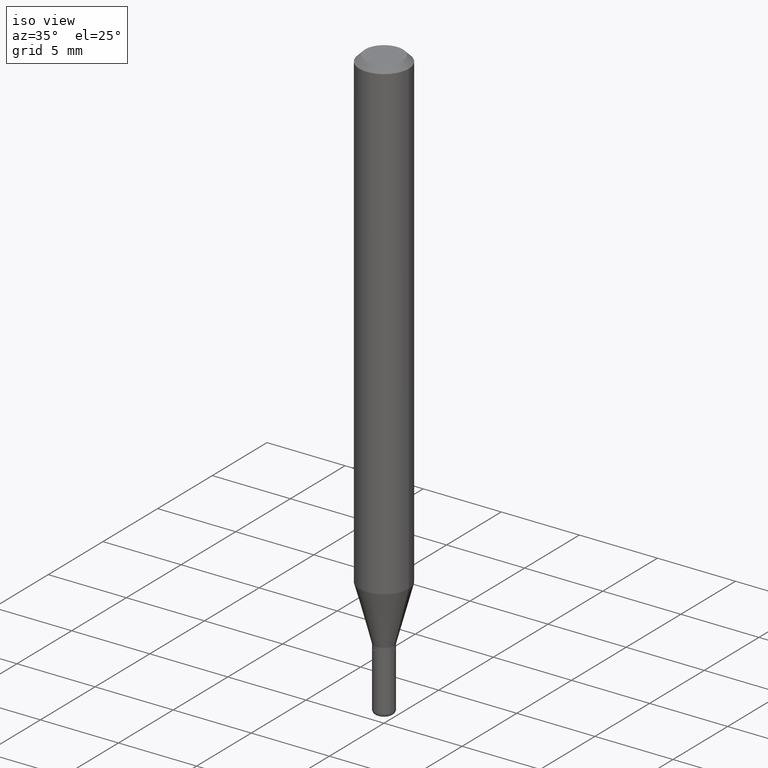
[diagram: clean part render]
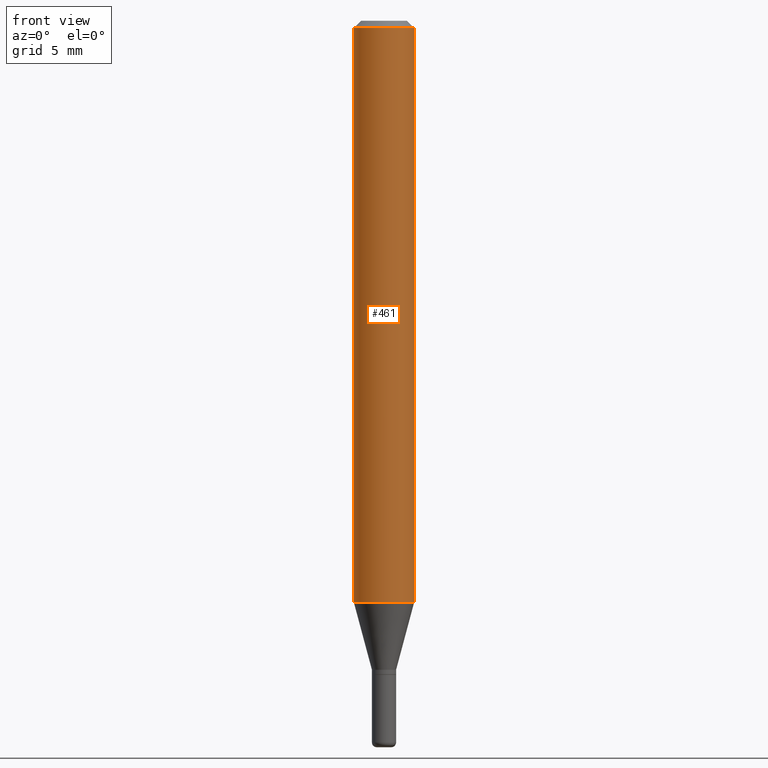
[diagram: tour spotlight — one face highlighted and labeled with its STEP entity id]
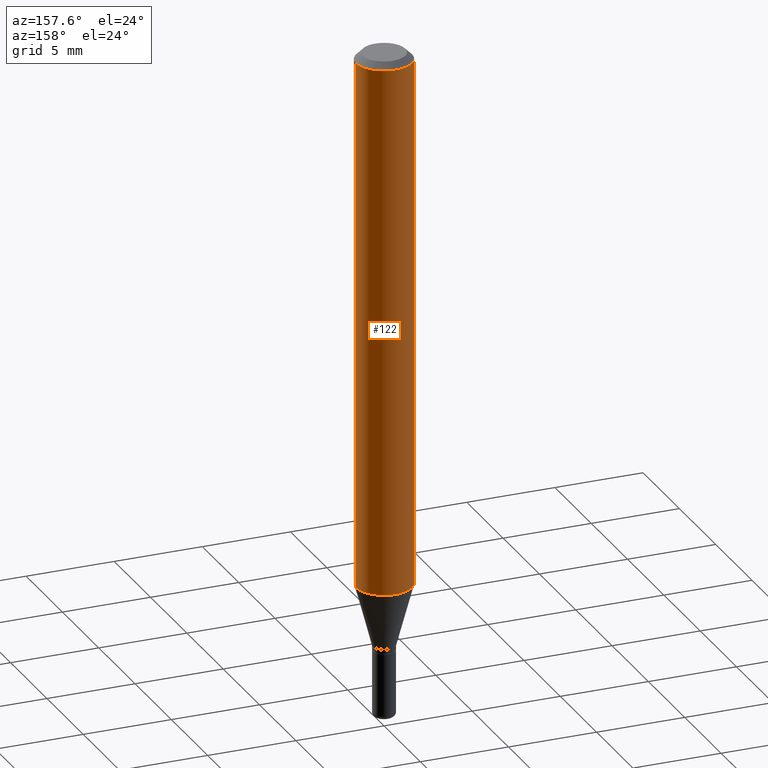
[diagram: tour spotlight — one face highlighted and labeled with its STEP entity id]
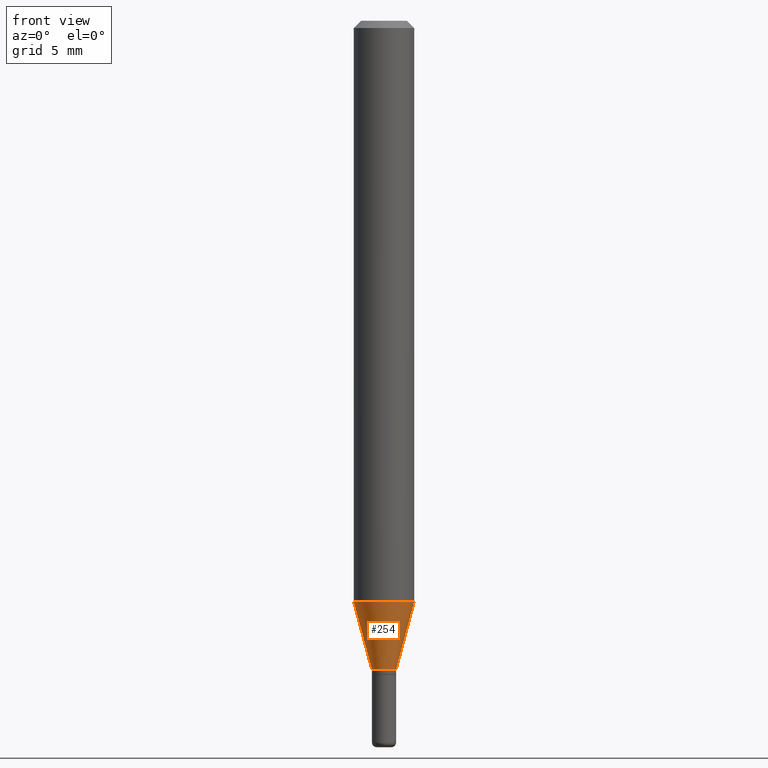
[diagram: tour spotlight — one face highlighted and labeled with its STEP entity id]
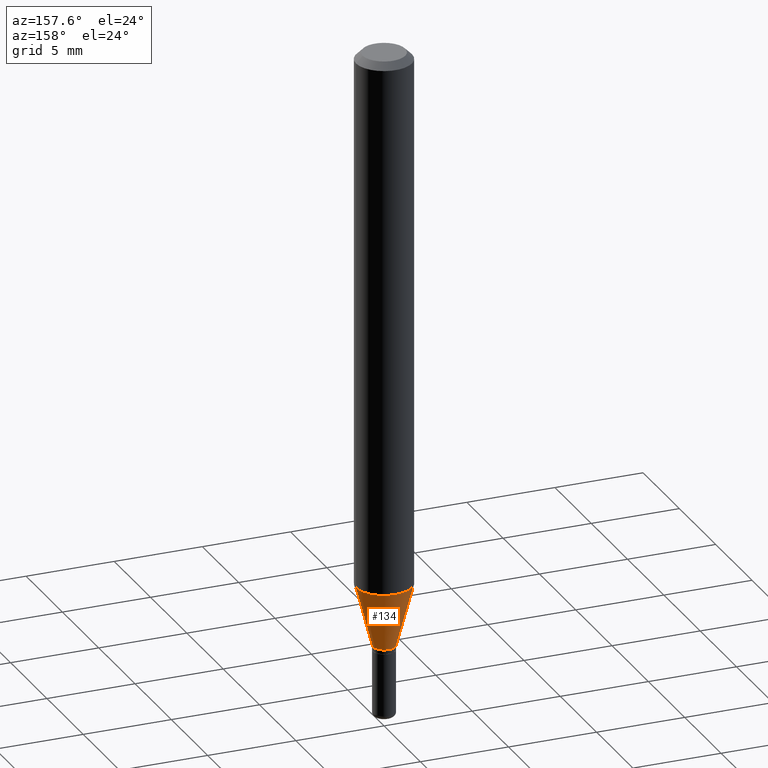
[diagram: tour spotlight — one face highlighted and labeled with its STEP entity id]
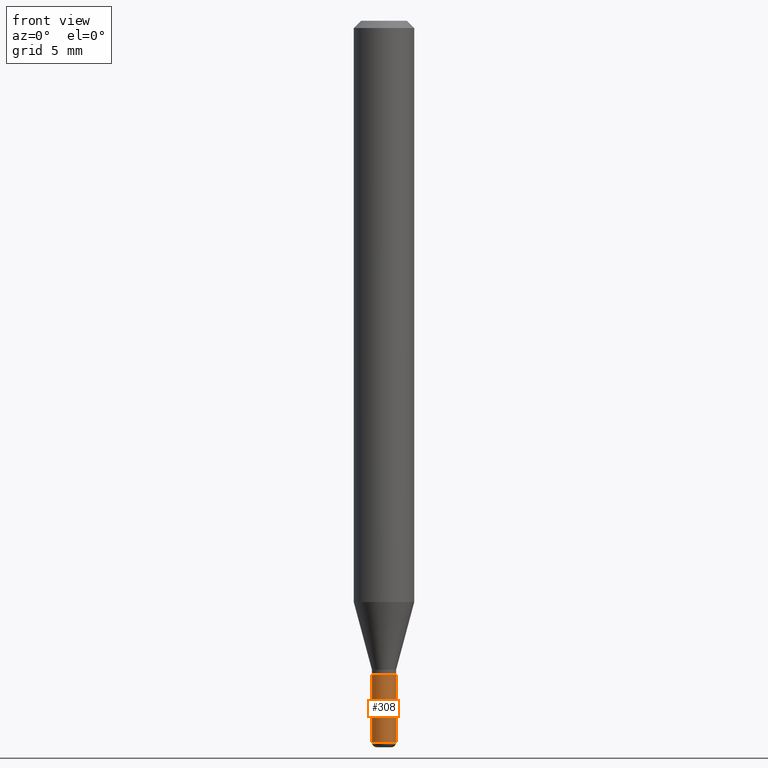
[diagram: tour spotlight — one face highlighted and labeled with its STEP entity id]
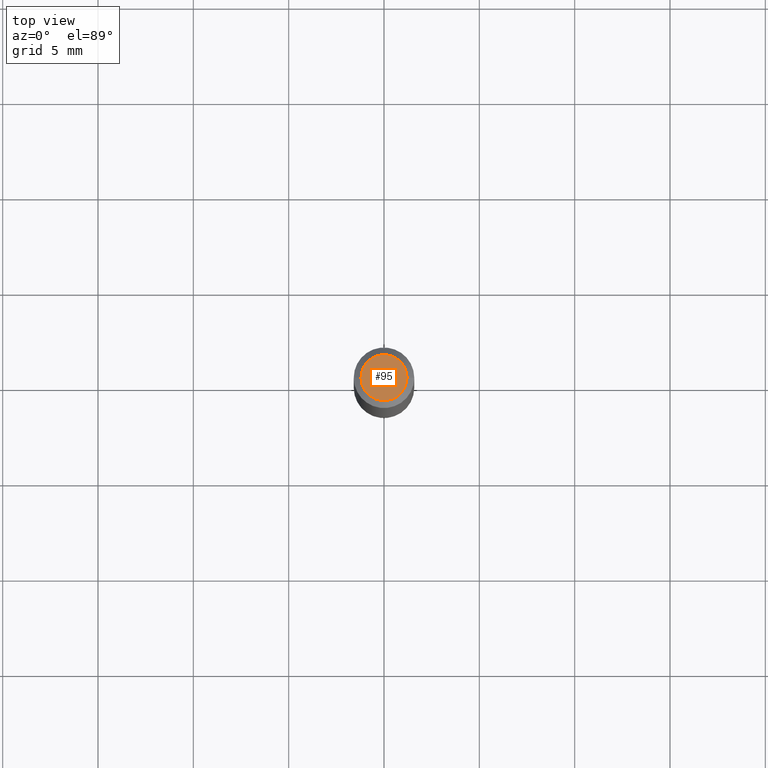
[diagram: tour spotlight — one face highlighted and labeled with its STEP entity id]
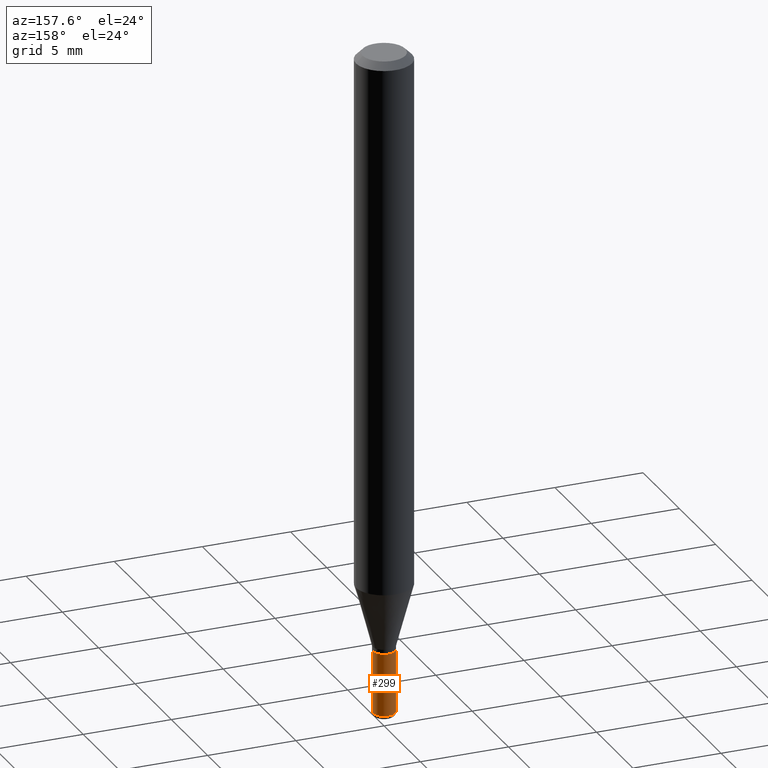
[diagram: tour spotlight — one face highlighted and labeled with its STEP entity id]
A machine part: a face-by-face anatomy tour. The part has 18 B-rep faces; the first image is the clean iso view, then the 7 largest visible faces are spotlighted one at a time (largest first), each with its STEP entity span.

Face 1 — front view, entity #461. In plain terms, the highlighted cylindrical surface (edge-blend (fillet) strip) has radius 1.5875 mm, axis along (-0, 0, 1).
Definition (entity closure, byte-faithful):
#9 = VERTEX_POINT ( 'NONE', #403 ) ;
#21 = AXIS2_PLACEMENT_3D ( 'NONE', #420, #71, #230 ) ;
#28 = CARTESIAN_POINT ( 'NONE',  ( -0.06250000000000000000, 4.440892098500626162E-16, -3.074334431409316114E-30 ) ) ;
#37 = VERTEX_POINT ( 'NONE', #332 ) ;
#71 = DIRECTION ( 'NONE',  ( -2.445468806185136597E-29, 3.491481338843145583E-15, 1.000000000000000000 ) ) ;
#75 = EDGE_CURVE ( 'NONE', #100, #434, #104, .T. ) ;
#100 = VERTEX_POINT ( 'NONE', #231 ) ;
#104 = LINE ( 'NONE', #326, #144 ) ;
#111 = FACE_OUTER_BOUND ( 'NONE', #476, .T. ) ;
#116 = EDGE_CURVE ( 'NONE', #9, #100, #400, .T. ) ;
#144 = VECTOR ( 'NONE', #259, 39.37007874015748143 ) ;
#151 = DIRECTION ( 'NONE',  ( -2.445468806185136877E-29, 3.491481338843145188E-15, 1.000000000000000000 ) ) ;
#179 = ORIENTED_EDGE ( 'NONE', *, *, #212, .F. ) ;
#182 = AXIS2_PLACEMENT_3D ( 'NONE', #341, #378, #224 ) ;
#203 = EDGE_CURVE ( 'NONE', #9, #37, #458, .T. ) ;
#212 = EDGE_CURVE ( 'NONE', #37, #434, #498, .T. ) ;
#224 = DIRECTION ( 'NONE',  ( 1.000000000000000000, -6.982962677686262766E-15, 0.000000000000000000 ) ) ;
#230 = DIRECTION ( 'NONE',  ( 1.000000000000000000, -6.982962677686266711E-15, 0.000000000000000000 ) ) ;
#231 = CARTESIAN_POINT ( 'NONE',  ( 0.06250000000000000000, -4.626380695771160368E-15, -1.200048094716167135 ) ) ;
#241 = ORIENTED_EDGE ( 'NONE', *, *, #203, .F. ) ;
#259 = DIRECTION ( 'NONE',  ( -2.445468806185136877E-29, 3.491481338843145188E-15, 1.000000000000000000 ) ) ;
#262 = DIRECTION ( 'NONE',  ( -2.445468806185136597E-29, 3.491481338843145583E-15, 1.000000000000000000 ) ) ;
#279 = AXIS2_PLACEMENT_3D ( 'NONE', #468, #262, #300 ) ;
#300 = DIRECTION ( 'NONE',  ( 1.000000000000000000, -6.982962677686266711E-15, 4.876176775795935793E-29 ) ) ;
#318 = ORIENTED_EDGE ( 'NONE', *, *, #75, .T. ) ;
#322 = ORIENTED_EDGE ( 'NONE', *, *, #116, .T. ) ;
#326 = CARTESIAN_POINT ( 'NONE',  ( 0.06250000000000000000, -4.364351673553916694E-16, 3.047610484872459871E-30 ) ) ;
#332 = CARTESIAN_POINT ( 'NONE',  ( -0.06250000000000000000, -1.677069664399144681E-15, -0.01499999999999970281 ) ) ;
#338 = CYLINDRICAL_SURFACE ( 'NONE', #279, 0.06250000000000000000 ) ;
#341 = CARTESIAN_POINT ( 'NONE',  ( 2.934680181550293043E-29, -4.189945528415768698E-15, -1.200048094716167135 ) ) ;
#357 = VECTOR ( 'NONE', #151, 39.37007874015748143 ) ;
#378 = DIRECTION ( 'NONE',  ( -2.445468806185136597E-29, 3.491481338843145583E-15, 1.000000000000000000 ) ) ;
#400 = CIRCLE ( 'NONE', #182, 0.06250000000000000000 ) ;
#403 = CARTESIAN_POINT ( 'NONE',  ( -0.06250000000000000000, -3.745856318565706082E-15, -1.200048094716167135 ) ) ;
#420 = CARTESIAN_POINT ( 'NONE',  ( 3.668203209277632395E-31, -5.237222008264614861E-17, -0.01499999999999970281 ) ) ;
#434 = VERTEX_POINT ( 'NONE', #511 ) ;
#458 = LINE ( 'NONE', #28, #357 ) ;
#461 = ADVANCED_FACE ( 'NONE', ( #111 ), #338, .T. ) ;
#468 = CARTESIAN_POINT ( 'NONE',  ( 0.000000000000000000, 0.000000000000000000, 0.000000000000000000 ) ) ;
#476 = EDGE_LOOP ( 'NONE', ( #241, #322, #318, #179 ) ) ;
#498 = CIRCLE ( 'NONE', #21, 0.06250000000000000000 ) ;
#511 = CARTESIAN_POINT ( 'NONE',  ( 0.06250000000000000000, -4.888073874380378612E-16, -0.01499999999999970281 ) ) ;

Face 2 — auxiliary view, entity #122. In plain terms, the highlighted cylindrical surface (edge-blend (fillet) strip) has radius 1.5875 mm, axis along (-0, 0, 1).
Definition (entity closure, byte-faithful):
#9 = VERTEX_POINT ( 'NONE', #403 ) ;
#28 = CARTESIAN_POINT ( 'NONE',  ( -0.06250000000000000000, 4.440892098500626162E-16, -3.074334431409316114E-30 ) ) ;
#37 = VERTEX_POINT ( 'NONE', #332 ) ;
#40 = AXIS2_PLACEMENT_3D ( 'NONE', #261, #74, #414 ) ;
#47 = CIRCLE ( 'NONE', #287, 0.06250000000000000000 ) ;
#74 = DIRECTION ( 'NONE',  ( -2.445468806185136597E-29, 3.491481338843145583E-15, 1.000000000000000000 ) ) ;
#75 = EDGE_CURVE ( 'NONE', #100, #434, #104, .T. ) ;
#100 = VERTEX_POINT ( 'NONE', #231 ) ;
#104 = LINE ( 'NONE', #326, #144 ) ;
#122 = ADVANCED_FACE ( 'NONE', ( #298 ), #416, .T. ) ;
#124 = ORIENTED_EDGE ( 'NONE', *, *, #203, .T. ) ;
#138 = EDGE_LOOP ( 'NONE', ( #213, #124, #334, #316 ) ) ;
#143 = CIRCLE ( 'NONE', #398, 0.06250000000000000000 ) ;
#144 = VECTOR ( 'NONE', #259, 39.37007874015748143 ) ;
#151 = DIRECTION ( 'NONE',  ( -2.445468806185136877E-29, 3.491481338843145188E-15, 1.000000000000000000 ) ) ;
#188 = CARTESIAN_POINT ( 'NONE',  ( 2.934680181550293043E-29, -4.189945528415768698E-15, -1.200048094716167135 ) ) ;
#203 = EDGE_CURVE ( 'NONE', #9, #37, #458, .T. ) ;
#213 = ORIENTED_EDGE ( 'NONE', *, *, #516, .T. ) ;
#216 = CARTESIAN_POINT ( 'NONE',  ( 3.668203209277632395E-31, -5.237222008264614861E-17, -0.01499999999999970281 ) ) ;
#231 = CARTESIAN_POINT ( 'NONE',  ( 0.06250000000000000000, -4.626380695771160368E-15, -1.200048094716167135 ) ) ;
#259 = DIRECTION ( 'NONE',  ( -2.445468806185136877E-29, 3.491481338843145188E-15, 1.000000000000000000 ) ) ;
#261 = CARTESIAN_POINT ( 'NONE',  ( 0.000000000000000000, 0.000000000000000000, 0.000000000000000000 ) ) ;
#265 = DIRECTION ( 'NONE',  ( -2.445468806185136597E-29, 3.491481338843145583E-15, 1.000000000000000000 ) ) ;
#287 = AXIS2_PLACEMENT_3D ( 'NONE', #216, #328, #487 ) ;
#298 = FACE_OUTER_BOUND ( 'NONE', #138, .T. ) ;
#316 = ORIENTED_EDGE ( 'NONE', *, *, #75, .F. ) ;
#326 = CARTESIAN_POINT ( 'NONE',  ( 0.06250000000000000000, -4.364351673553916694E-16, 3.047610484872459871E-30 ) ) ;
#328 = DIRECTION ( 'NONE',  ( -2.445468806185136597E-29, 3.491481338843145583E-15, 1.000000000000000000 ) ) ;
#332 = CARTESIAN_POINT ( 'NONE',  ( -0.06250000000000000000, -1.677069664399144681E-15, -0.01499999999999970281 ) ) ;
#334 = ORIENTED_EDGE ( 'NONE', *, *, #412, .F. ) ;
#357 = VECTOR ( 'NONE', #151, 39.37007874015748143 ) ;
#398 = AXIS2_PLACEMENT_3D ( 'NONE', #188, #265, #463 ) ;
#403 = CARTESIAN_POINT ( 'NONE',  ( -0.06250000000000000000, -3.745856318565706082E-15, -1.200048094716167135 ) ) ;
#412 = EDGE_CURVE ( 'NONE', #434, #37, #47, .T. ) ;
#414 = DIRECTION ( 'NONE',  ( 1.000000000000000000, -6.982962677686266711E-15, 4.876176775795935793E-29 ) ) ;
#416 = CYLINDRICAL_SURFACE ( 'NONE', #40, 0.06250000000000000000 ) ;
#434 = VERTEX_POINT ( 'NONE', #511 ) ;
#458 = LINE ( 'NONE', #28, #357 ) ;
#463 = DIRECTION ( 'NONE',  ( 1.000000000000000000, -6.982962677686262766E-15, 0.000000000000000000 ) ) ;
#487 = DIRECTION ( 'NONE',  ( 1.000000000000000000, -6.982962677686266711E-15, 0.000000000000000000 ) ) ;
#511 = CARTESIAN_POINT ( 'NONE',  ( 0.06250000000000000000, -4.888073874380378612E-16, -0.01499999999999970281 ) ) ;
#516 = EDGE_CURVE ( 'NONE', #100, #9, #143, .T. ) ;

Face 3 — front view, entity #254. In plain terms, the highlighted conical surface has half-angle 15 deg.
Definition (entity closure, byte-faithful):
#8 = EDGE_CURVE ( 'NONE', #393, #438, #296, .T. ) ;
#9 = VERTEX_POINT ( 'NONE', #403 ) ;
#33 = CARTESIAN_POINT ( 'NONE',  ( 0.02499999999999996322, -4.853159060991972403E-15, -1.340000000000000080 ) ) ;
#35 = CARTESIAN_POINT ( 'NONE',  ( 0.02499999999999996322, -4.853159060991972403E-15, -1.340000000000000080 ) ) ;
#64 = FACE_OUTER_BOUND ( 'NONE', #191, .T. ) ;
#99 = DIRECTION ( 'NONE',  ( 1.000000000000000000, -6.982962677686265133E-15, 0.000000000000000000 ) ) ;
#100 = VERTEX_POINT ( 'NONE', #231 ) ;
#113 = DIRECTION ( 'NONE',  ( -0.2588190451025205729, 5.211531920934544731E-15, 0.9659258262890682012 ) ) ;
#116 = EDGE_CURVE ( 'NONE', #9, #100, #400, .T. ) ;
#123 = ORIENTED_EDGE ( 'NONE', *, *, #497, .T. ) ;
#150 = DIRECTION ( 'NONE',  ( 0.2588190451025205729, 1.565188264969627490E-15, 0.9659258262890682012 ) ) ;
#159 = ORIENTED_EDGE ( 'NONE', *, *, #205, .F. ) ;
#182 = AXIS2_PLACEMENT_3D ( 'NONE', #341, #378, #224 ) ;
#191 = EDGE_LOOP ( 'NONE', ( #159, #275, #123, #291 ) ) ;
#193 = VECTOR ( 'NONE', #113, 39.37007874015748854 ) ;
#205 = EDGE_CURVE ( 'NONE', #393, #9, #303, .T. ) ;
#206 = CONICAL_SURFACE ( 'NONE', #258, 0.02499999999999996322, 0.2617993877991492968 ) ;
#221 = CARTESIAN_POINT ( 'NONE',  ( -0.02499999999999996322, -4.123402814337748307E-15, -1.340000000000000080 ) ) ;
#222 = DIRECTION ( 'NONE',  ( 1.000000000000000000, -6.982962677686265133E-15, 0.000000000000000000 ) ) ;
#224 = DIRECTION ( 'NONE',  ( 1.000000000000000000, -6.982962677686262766E-15, 0.000000000000000000 ) ) ;
#231 = CARTESIAN_POINT ( 'NONE',  ( 0.06250000000000000000, -4.626380695771160368E-15, -1.200048094716167135 ) ) ;
#253 = DIRECTION ( 'NONE',  ( -2.445468806185136597E-29, 3.491481338843145583E-15, 1.000000000000000000 ) ) ;
#254 = ADVANCED_FACE ( 'NONE', ( #64 ), #206, .T. ) ;
#258 = AXIS2_PLACEMENT_3D ( 'NONE', #288, #336, #99 ) ;
#272 = LINE ( 'NONE', #35, #451 ) ;
#275 = ORIENTED_EDGE ( 'NONE', *, *, #8, .T. ) ;
#286 = CARTESIAN_POINT ( 'NONE',  ( 3.276928200288083533E-29, -4.678584994049815735E-15, -1.340000000000000080 ) ) ;
#288 = CARTESIAN_POINT ( 'NONE',  ( 3.276928200288083533E-29, -4.678584994049815735E-15, -1.340000000000000080 ) ) ;
#291 = ORIENTED_EDGE ( 'NONE', *, *, #116, .F. ) ;
#296 = CIRCLE ( 'NONE', #312, 0.02499999999999996322 ) ;
#303 = LINE ( 'NONE', #462, #193 ) ;
#312 = AXIS2_PLACEMENT_3D ( 'NONE', #286, #253, #222 ) ;
#336 = DIRECTION ( 'NONE',  ( -2.445468806185136597E-29, 3.491481338843145583E-15, 1.000000000000000000 ) ) ;
#341 = CARTESIAN_POINT ( 'NONE',  ( 2.934680181550293043E-29, -4.189945528415768698E-15, -1.200048094716167135 ) ) ;
#378 = DIRECTION ( 'NONE',  ( -2.445468806185136597E-29, 3.491481338843145583E-15, 1.000000000000000000 ) ) ;
#393 = VERTEX_POINT ( 'NONE', #221 ) ;
#400 = CIRCLE ( 'NONE', #182, 0.06250000000000000000 ) ;
#403 = CARTESIAN_POINT ( 'NONE',  ( -0.06250000000000000000, -3.745856318565706082E-15, -1.200048094716167135 ) ) ;
#438 = VERTEX_POINT ( 'NONE', #33 ) ;
#451 = VECTOR ( 'NONE', #150, 39.37007874015748854 ) ;
#462 = CARTESIAN_POINT ( 'NONE',  ( -0.02499999999999996322, -4.500949310109790531E-15, -1.340000000000000080 ) ) ;
#497 = EDGE_CURVE ( 'NONE', #438, #100, #272, .T. ) ;

Face 4 — auxiliary view, entity #134. In plain terms, the highlighted conical surface has half-angle 15 deg.
Definition (entity closure, byte-faithful):
#7 = CONICAL_SURFACE ( 'NONE', #472, 0.02499999999999996322, 0.2617993877991492968 ) ;
#9 = VERTEX_POINT ( 'NONE', #403 ) ;
#33 = CARTESIAN_POINT ( 'NONE',  ( 0.02499999999999996322, -4.853159060991972403E-15, -1.340000000000000080 ) ) ;
#35 = CARTESIAN_POINT ( 'NONE',  ( 0.02499999999999996322, -4.853159060991972403E-15, -1.340000000000000080 ) ) ;
#38 = ORIENTED_EDGE ( 'NONE', *, *, #205, .T. ) ;
#85 = ORIENTED_EDGE ( 'NONE', *, *, #386, .T. ) ;
#100 = VERTEX_POINT ( 'NONE', #231 ) ;
#113 = DIRECTION ( 'NONE',  ( -0.2588190451025205729, 5.211531920934544731E-15, 0.9659258262890682012 ) ) ;
#134 = ADVANCED_FACE ( 'NONE', ( #344 ), #7, .T. ) ;
#139 = DIRECTION ( 'NONE',  ( -2.445468806185136597E-29, 3.491481338843145583E-15, 1.000000000000000000 ) ) ;
#143 = CIRCLE ( 'NONE', #398, 0.06250000000000000000 ) ;
#150 = DIRECTION ( 'NONE',  ( 0.2588190451025205729, 1.565188264969627490E-15, 0.9659258262890682012 ) ) ;
#188 = CARTESIAN_POINT ( 'NONE',  ( 2.934680181550293043E-29, -4.189945528415768698E-15, -1.200048094716167135 ) ) ;
#193 = VECTOR ( 'NONE', #113, 39.37007874015748854 ) ;
#205 = EDGE_CURVE ( 'NONE', #393, #9, #303, .T. ) ;
#221 = CARTESIAN_POINT ( 'NONE',  ( -0.02499999999999996322, -4.123402814337748307E-15, -1.340000000000000080 ) ) ;
#231 = CARTESIAN_POINT ( 'NONE',  ( 0.06250000000000000000, -4.626380695771160368E-15, -1.200048094716167135 ) ) ;
#250 = CARTESIAN_POINT ( 'NONE',  ( 3.276928200288083533E-29, -4.678584994049815735E-15, -1.340000000000000080 ) ) ;
#265 = DIRECTION ( 'NONE',  ( -2.445468806185136597E-29, 3.491481338843145583E-15, 1.000000000000000000 ) ) ;
#267 = CARTESIAN_POINT ( 'NONE',  ( 3.276928200288083533E-29, -4.678584994049815735E-15, -1.340000000000000080 ) ) ;
#272 = LINE ( 'NONE', #35, #451 ) ;
#284 = ORIENTED_EDGE ( 'NONE', *, *, #497, .F. ) ;
#303 = LINE ( 'NONE', #462, #193 ) ;
#344 = FACE_OUTER_BOUND ( 'NONE', #514, .T. ) ;
#381 = DIRECTION ( 'NONE',  ( -2.445468806185136597E-29, 3.491481338843145583E-15, 1.000000000000000000 ) ) ;
#386 = EDGE_CURVE ( 'NONE', #438, #393, #454, .T. ) ;
#393 = VERTEX_POINT ( 'NONE', #221 ) ;
#398 = AXIS2_PLACEMENT_3D ( 'NONE', #188, #265, #463 ) ;
#401 = DIRECTION ( 'NONE',  ( 1.000000000000000000, -6.982962677686265133E-15, 0.000000000000000000 ) ) ;
#403 = CARTESIAN_POINT ( 'NONE',  ( -0.06250000000000000000, -3.745856318565706082E-15, -1.200048094716167135 ) ) ;
#417 = AXIS2_PLACEMENT_3D ( 'NONE', #250, #139, #401 ) ;
#438 = VERTEX_POINT ( 'NONE', #33 ) ;
#451 = VECTOR ( 'NONE', #150, 39.37007874015748854 ) ;
#454 = CIRCLE ( 'NONE', #417, 0.02499999999999996322 ) ;
#462 = CARTESIAN_POINT ( 'NONE',  ( -0.02499999999999996322, -4.500949310109790531E-15, -1.340000000000000080 ) ) ;
#463 = DIRECTION ( 'NONE',  ( 1.000000000000000000, -6.982962677686262766E-15, 0.000000000000000000 ) ) ;
#464 = DIRECTION ( 'NONE',  ( 1.000000000000000000, -6.982962677686265133E-15, 0.000000000000000000 ) ) ;
#470 = ORIENTED_EDGE ( 'NONE', *, *, #516, .F. ) ;
#472 = AXIS2_PLACEMENT_3D ( 'NONE', #267, #381, #464 ) ;
#497 = EDGE_CURVE ( 'NONE', #438, #100, #272, .T. ) ;
#514 = EDGE_LOOP ( 'NONE', ( #85, #38, #470, #284 ) ) ;
#516 = EDGE_CURVE ( 'NONE', #100, #9, #143, .T. ) ;

Face 5 — front view, entity #308. In plain terms, the highlighted cylindrical surface (edge-blend (fillet) strip) has radius 0.635 mm, axis along (-0, 0, 1).
Definition (entity closure, byte-faithful):
#12 = ORIENTED_EDGE ( 'NONE', *, *, #480, .T. ) ;
#58 = CIRCLE ( 'NONE', #342, 0.02500000000000000139 ) ;
#62 = CARTESIAN_POINT ( 'NONE',  ( -0.02499999999999994588, -4.780267817217242146E-15, -1.490000000000000213 ) ) ;
#63 = VERTEX_POINT ( 'NONE', #293 ) ;
#66 = DIRECTION ( 'NONE',  ( -2.445468806185136877E-29, 3.491481338843145188E-15, 1.000000000000000000 ) ) ;
#68 = VECTOR ( 'NONE', #66, 39.37007874015748143 ) ;
#81 = DIRECTION ( 'NONE',  ( -2.445468806185136877E-29, 3.491481338843145188E-15, 1.000000000000000000 ) ) ;
#82 = VERTEX_POINT ( 'NONE', #411 ) ;
#94 = DIRECTION ( 'NONE',  ( 1.000000000000000000, -6.982962677686269866E-15, 0.000000000000000000 ) ) ;
#106 = CARTESIAN_POINT ( 'NONE',  ( 0.000000000000000000, 0.000000000000000000, 0.000000000000000000 ) ) ;
#126 = CIRCLE ( 'NONE', #478, 0.02499999999999994588 ) ;
#129 = EDGE_CURVE ( 'NONE', #350, #82, #339, .T. ) ;
#135 = DIRECTION ( 'NONE',  ( 1.000000000000000000, -6.982962677686265922E-15, 4.876176775795935232E-29 ) ) ;
#152 = CARTESIAN_POINT ( 'NONE',  ( -0.02499999999999997363, 1.776356839400248591E-16, -1.229733772563725079E-30 ) ) ;
#164 = ORIENTED_EDGE ( 'NONE', *, *, #319, .T. ) ;
#195 = CARTESIAN_POINT ( 'NONE',  ( 3.301382888349935078E-29, -4.713499807438246596E-15, -1.350000000000000089 ) ) ;
#200 = VERTEX_POINT ( 'NONE', #423 ) ;
#218 = DIRECTION ( 'NONE',  ( -2.445468806185136597E-29, 3.491481338843145583E-15, 1.000000000000000000 ) ) ;
#225 = LINE ( 'NONE', #424, #255 ) ;
#229 = DIRECTION ( 'NONE',  ( 1.000000000000000000, -6.982962677686254878E-15, 0.000000000000000000 ) ) ;
#237 = DIRECTION ( 'NONE',  ( -2.445468806185136597E-29, 3.491481338843145583E-15, 1.000000000000000000 ) ) ;
#255 = VECTOR ( 'NONE', #81, 39.37007874015748143 ) ;
#278 = EDGE_LOOP ( 'NONE', ( #479, #164, #12, #419 ) ) ;
#293 = CARTESIAN_POINT ( 'NONE',  ( 0.02500000000000000139, -4.888073874380403263E-15, -1.350000000000000089 ) ) ;
#308 = ADVANCED_FACE ( 'NONE', ( #362 ), #449, .T. ) ;
#319 = EDGE_CURVE ( 'NONE', #350, #200, #126, .T. ) ;
#339 = LINE ( 'NONE', #152, #68 ) ;
#342 = AXIS2_PLACEMENT_3D ( 'NONE', #195, #237, #229 ) ;
#350 = VERTEX_POINT ( 'NONE', #62 ) ;
#362 = FACE_OUTER_BOUND ( 'NONE', #278, .T. ) ;
#365 = CARTESIAN_POINT ( 'NONE',  ( 3.643748521215853910E-29, -5.202307194876288105E-15, -1.490000000000000213 ) ) ;
#411 = CARTESIAN_POINT ( 'NONE',  ( -0.02500000000000000139, -4.780267817217242146E-15, -1.350000000000000089 ) ) ;
#419 = ORIENTED_EDGE ( 'NONE', *, *, #471, .F. ) ;
#423 = CARTESIAN_POINT ( 'NONE',  ( 0.02499999999999994588, -5.376881261818443984E-15, -1.490000000000000213 ) ) ;
#424 = CARTESIAN_POINT ( 'NONE',  ( 0.02499999999999997363, -1.745740669421564705E-16, 1.219044193948982547E-30 ) ) ;
#441 = DIRECTION ( 'NONE',  ( -2.445468806185136597E-29, 3.491481338843145583E-15, 1.000000000000000000 ) ) ;
#449 = CYLINDRICAL_SURFACE ( 'NONE', #495, 0.02499999999999997363 ) ;
#471 = EDGE_CURVE ( 'NONE', #82, #63, #58, .T. ) ;
#478 = AXIS2_PLACEMENT_3D ( 'NONE', #365, #441, #94 ) ;
#479 = ORIENTED_EDGE ( 'NONE', *, *, #129, .F. ) ;
#480 = EDGE_CURVE ( 'NONE', #200, #63, #225, .T. ) ;
#495 = AXIS2_PLACEMENT_3D ( 'NONE', #106, #218, #135 ) ;

Face 6 — top view, entity #95. In plain terms, the highlighted planar face has unit normal (0, -0, -1).
Definition (entity closure, byte-faithful):
#26 = DIRECTION ( 'NONE',  ( 2.438088387897960049E-29, -3.491481338843145188E-15, -1.000000000000000000 ) ) ;
#50 = EDGE_LOOP ( 'NONE', ( #163, #128 ) ) ;
#65 = EDGE_CURVE ( 'NONE', #361, #352, #247, .T. ) ;
#95 = ADVANCED_FACE ( 'NONE', ( #109 ), #189, .F. ) ;
#98 = CARTESIAN_POINT ( 'NONE',  ( -6.680649051745406845E-45, 9.538196290434862081E-31, 2.731847993664263218E-16 ) ) ;
#109 = FACE_OUTER_BOUND ( 'NONE', #50, .T. ) ;
#128 = ORIENTED_EDGE ( 'NONE', *, *, #477, .T. ) ;
#156 = DIRECTION ( 'NONE',  ( -2.445468806185136597E-29, 3.491481338843145583E-15, 1.000000000000000000 ) ) ;
#163 = ORIENTED_EDGE ( 'NONE', *, *, #65, .T. ) ;
#178 = CARTESIAN_POINT ( 'NONE',  ( 0.04750000000000000749, -4.035134999187568762E-16, 2.731847993664288856E-16 ) ) ;
#186 = DIRECTION ( 'NONE',  ( -1.000000000000000000, 6.982962677686265922E-15, -4.876176775795935793E-29 ) ) ;
#189 = PLANE ( 'NONE',  #274 ) ;
#210 = AXIS2_PLACEMENT_3D ( 'NONE', #457, #156, #384 ) ;
#247 = CIRCLE ( 'NONE', #358, 0.04750000000000000749 ) ;
#263 = CARTESIAN_POINT ( 'NONE',  ( 3.316907271900976589E-16, 0.04750000000000000749, -2.925296391183627249E-17 ) ) ;
#273 = CIRCLE ( 'NONE', #210, 0.04750000000000000749 ) ;
#274 = AXIS2_PLACEMENT_3D ( 'NONE', #263, #26, #186 ) ;
#352 = VERTEX_POINT ( 'NONE', #178 ) ;
#358 = AXIS2_PLACEMENT_3D ( 'NONE', #98, #363, #452 ) ;
#361 = VERTEX_POINT ( 'NONE', #367 ) ;
#363 = DIRECTION ( 'NONE',  ( -2.445468806185136597E-29, 3.491481338843145583E-15, 1.000000000000000000 ) ) ;
#367 = CARTESIAN_POINT ( 'NONE',  ( -0.04750000000000000749, 3.578768372314221353E-16, 2.731847993664239060E-16 ) ) ;
#384 = DIRECTION ( 'NONE',  ( 1.000000000000000000, -6.982962677686266711E-15, 4.852736867747365086E-29 ) ) ;
#452 = DIRECTION ( 'NONE',  ( 1.000000000000000000, -6.982962677686266711E-15, 4.852736867747365086E-29 ) ) ;
#457 = CARTESIAN_POINT ( 'NONE',  ( -6.680649051745406845E-45, 9.538196290434862081E-31, 2.731847993664263218E-16 ) ) ;
#477 = EDGE_CURVE ( 'NONE', #352, #361, #273, .T. ) ;

Face 7 — auxiliary view, entity #299. In plain terms, the highlighted cylindrical surface (edge-blend (fillet) strip) has radius 0.635 mm, axis along (-0, 0, 1).
Definition (entity closure, byte-faithful):
#11 = DIRECTION ( 'NONE',  ( -2.445468806185136597E-29, 3.491481338843145583E-15, 1.000000000000000000 ) ) ;
#14 = ORIENTED_EDGE ( 'NONE', *, *, #129, .T. ) ;
#32 = AXIS2_PLACEMENT_3D ( 'NONE', #445, #499, #252 ) ;
#62 = CARTESIAN_POINT ( 'NONE',  ( -0.02499999999999994588, -4.780267817217242146E-15, -1.490000000000000213 ) ) ;
#63 = VERTEX_POINT ( 'NONE', #293 ) ;
#66 = DIRECTION ( 'NONE',  ( -2.445468806185136877E-29, 3.491481338843145188E-15, 1.000000000000000000 ) ) ;
#68 = VECTOR ( 'NONE', #66, 39.37007874015748143 ) ;
#81 = DIRECTION ( 'NONE',  ( -2.445468806185136877E-29, 3.491481338843145188E-15, 1.000000000000000000 ) ) ;
#82 = VERTEX_POINT ( 'NONE', #411 ) ;
#88 = EDGE_LOOP ( 'NONE', ( #277, #14, #320, #131 ) ) ;
#117 = DIRECTION ( 'NONE',  ( 1.000000000000000000, -6.982962677686254878E-15, 0.000000000000000000 ) ) ;
#129 = EDGE_CURVE ( 'NONE', #350, #82, #339, .T. ) ;
#131 = ORIENTED_EDGE ( 'NONE', *, *, #480, .F. ) ;
#133 = CIRCLE ( 'NONE', #428, 0.02500000000000000139 ) ;
#152 = CARTESIAN_POINT ( 'NONE',  ( -0.02499999999999997363, 1.776356839400248591E-16, -1.229733772563725079E-30 ) ) ;
#176 = DIRECTION ( 'NONE',  ( 1.000000000000000000, -6.982962677686269866E-15, 0.000000000000000000 ) ) ;
#200 = VERTEX_POINT ( 'NONE', #423 ) ;
#223 = FACE_OUTER_BOUND ( 'NONE', #88, .T. ) ;
#225 = LINE ( 'NONE', #424, #255 ) ;
#252 = DIRECTION ( 'NONE',  ( 1.000000000000000000, -6.982962677686265922E-15, 4.876176775795935232E-29 ) ) ;
#255 = VECTOR ( 'NONE', #81, 39.37007874015748143 ) ;
#270 = DIRECTION ( 'NONE',  ( -2.445468806185136597E-29, 3.491481338843145583E-15, 1.000000000000000000 ) ) ;
#277 = ORIENTED_EDGE ( 'NONE', *, *, #323, .T. ) ;
#293 = CARTESIAN_POINT ( 'NONE',  ( 0.02500000000000000139, -4.888073874380403263E-15, -1.350000000000000089 ) ) ;
#299 = ADVANCED_FACE ( 'NONE', ( #223 ), #330, .T. ) ;
#304 = CARTESIAN_POINT ( 'NONE',  ( 3.301382888349935078E-29, -4.713499807438246596E-15, -1.350000000000000089 ) ) ;
#310 = AXIS2_PLACEMENT_3D ( 'NONE', #371, #11, #176 ) ;
#320 = ORIENTED_EDGE ( 'NONE', *, *, #440, .F. ) ;
#323 = EDGE_CURVE ( 'NONE', #200, #350, #442, .T. ) ;
#330 = CYLINDRICAL_SURFACE ( 'NONE', #32, 0.02499999999999997363 ) ;
#339 = LINE ( 'NONE', #152, #68 ) ;
#350 = VERTEX_POINT ( 'NONE', #62 ) ;
#371 = CARTESIAN_POINT ( 'NONE',  ( 3.643748521215853910E-29, -5.202307194876288105E-15, -1.490000000000000213 ) ) ;
#411 = CARTESIAN_POINT ( 'NONE',  ( -0.02500000000000000139, -4.780267817217242146E-15, -1.350000000000000089 ) ) ;
#423 = CARTESIAN_POINT ( 'NONE',  ( 0.02499999999999994588, -5.376881261818443984E-15, -1.490000000000000213 ) ) ;
#424 = CARTESIAN_POINT ( 'NONE',  ( 0.02499999999999997363, -1.745740669421564705E-16, 1.219044193948982547E-30 ) ) ;
#428 = AXIS2_PLACEMENT_3D ( 'NONE', #304, #270, #117 ) ;
#440 = EDGE_CURVE ( 'NONE', #63, #82, #133, .T. ) ;
#442 = CIRCLE ( 'NONE', #310, 0.02499999999999994588 ) ;
#445 = CARTESIAN_POINT ( 'NONE',  ( 0.000000000000000000, 0.000000000000000000, 0.000000000000000000 ) ) ;
#480 = EDGE_CURVE ( 'NONE', #200, #63, #225, .T. ) ;
#499 = DIRECTION ( 'NONE',  ( -2.445468806185136597E-29, 3.491481338843145583E-15, 1.000000000000000000 ) ) ;